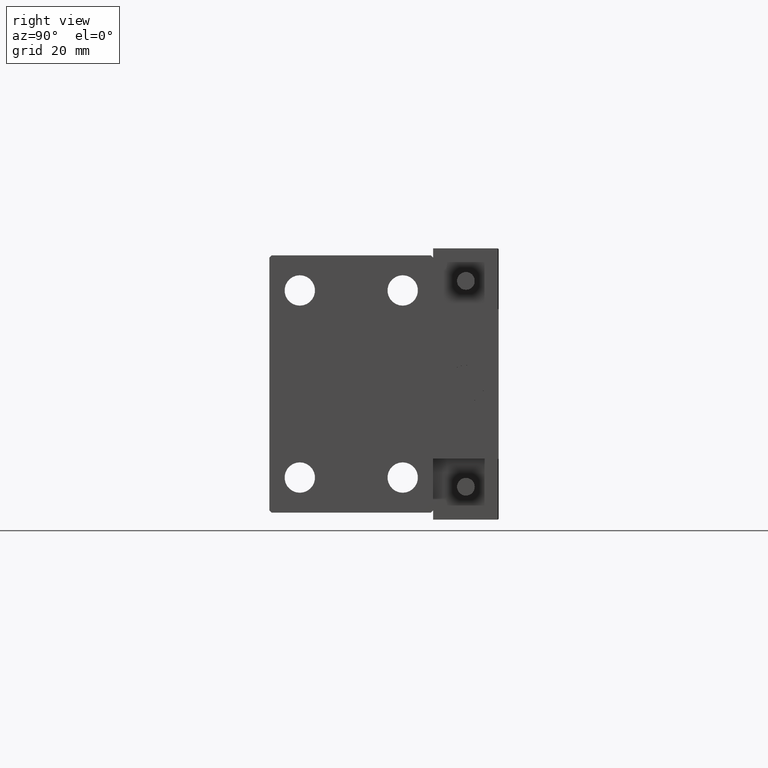
[diagram: clean part render]
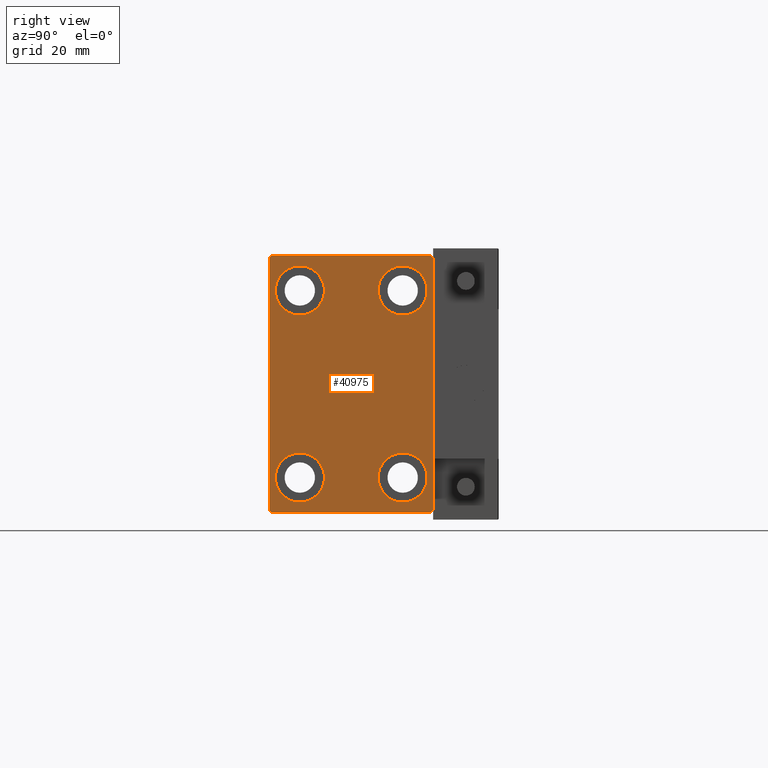
[diagram: same view with one face highlighted and labeled with its STEP entity id]
A machine part, right view. The second image highlights one B-rep face of the part: STEP entity #40975.
In plain terms, the highlighted planar face has unit normal (1, 0, 0).
Its self-contained STEP definition (entity closure, byte-faithful):
#10 = CARTESIAN_POINT ( 'NONE',  ( 66.00000000000000000, -11.00000000000000355, -25.25000000000000000 ) ) ;
#755 = VERTEX_POINT ( 'NONE', #15569 ) ;
#1099 = CARTESIAN_POINT ( 'NONE',  ( 66.00000000000000000, 22.24999999999999645, -22.24999999999999645 ) ) ;
#1610 = ORIENTED_EDGE ( 'NONE', *, *, #31214, .T. ) ;
#1825 = CIRCLE ( 'NONE', #21225, 5.250000000000000888 ) ;
#3007 = VERTEX_POINT ( 'NONE', #39530 ) ;
#3582 = ORIENTED_EDGE ( 'NONE', *, *, #20964, .T. ) ;
#3701 = EDGE_CURVE ( 'NONE', #34740, #32030, #7687, .T. ) ;
#3790 = VERTEX_POINT ( 'NONE', #43704 ) ;
#4422 = CARTESIAN_POINT ( 'NONE',  ( 66.00000000000000000, 11.00000000000000355, 20.00000000000000000 ) ) ;
#5000 = CARTESIAN_POINT ( 'NONE',  ( 66.00000000000000000, -22.24999999999976552, 22.25000000000038014 ) ) ;
#5010 = CARTESIAN_POINT ( 'NONE',  ( 66.00000000000000000, -17.50000000000000000, -27.00000000000000355 ) ) ;
#5298 = CARTESIAN_POINT ( 'NONE',  ( 66.00000000000000000, 11.00000000000000355, -20.00000000000000000 ) ) ;
#5304 = DIRECTION ( 'NONE',  ( -1.000000000000000000, -0.000000000000000000, -0.000000000000000000 ) ) ;
#6593 = DIRECTION ( 'NONE',  ( -1.000000000000000000, -0.000000000000000000, -0.000000000000000000 ) ) ;
#6675 = FACE_BOUND ( 'NONE', #25118, .T. ) ;
#6714 = EDGE_CURVE ( 'NONE', #3007, #18403, #23223, .T. ) ;
#6882 = CARTESIAN_POINT ( 'NONE',  ( 66.00000000000000000, -17.50000000000000000, 27.00000000000001066 ) ) ;
#7578 = VERTEX_POINT ( 'NONE', #24486 ) ;
#7687 = LINE ( 'NONE', #38649, #26371 ) ;
#7827 = DIRECTION ( 'NONE',  ( -0.000000000000000000, -0.7071067811865378028, 0.7071067811865573427 ) ) ;
#8240 = CARTESIAN_POINT ( 'NONE',  ( 66.00000000000000000, -22.25000000000000355, -22.25000000000000355 ) ) ;
#8351 = VECTOR ( 'NONE', #24147, 1000.000000000000000 ) ;
#8426 = DIRECTION ( 'NONE',  ( 0.000000000000000000, 0.000000000000000000, 1.000000000000000000 ) ) ;
#8727 = DIRECTION ( 'NONE',  ( -1.000000000000000000, -0.000000000000000000, -0.000000000000000000 ) ) ;
#8933 = CARTESIAN_POINT ( 'NONE',  ( 66.00000000000000000, -17.50000000000000000, 27.49999999999999645 ) ) ;
#9257 = DIRECTION ( 'NONE',  ( 0.000000000000000000, 0.000000000000000000, 1.000000000000000000 ) ) ;
#9683 = AXIS2_PLACEMENT_3D ( 'NONE', #40058, #5304, #17221 ) ;
#9848 = DIRECTION ( 'NONE',  ( -1.000000000000000000, -0.000000000000000000, -0.000000000000000000 ) ) ;
#10233 = FACE_BOUND ( 'NONE', #27107, .T. ) ;
#10439 = CIRCLE ( 'NONE', #37964, 5.250000000000000888 ) ;
#10490 = DIRECTION ( 'NONE',  ( 0.000000000000000000, 0.000000000000000000, -1.000000000000000000 ) ) ;
#10941 = VECTOR ( 'NONE', #36450, 1000.000000000000000 ) ;
#11153 = VERTEX_POINT ( 'NONE', #31262 ) ;
#11294 = LINE ( 'NONE', #8240, #27140 ) ;
#11456 = AXIS2_PLACEMENT_3D ( 'NONE', #43923, #39874, #8426 ) ;
#11514 = CARTESIAN_POINT ( 'NONE',  ( 66.00000000000000000, 17.50000000000000000, 27.00000000000000355 ) ) ;
#12108 = VERTEX_POINT ( 'NONE', #14533 ) ;
#13002 = CARTESIAN_POINT ( 'NONE',  ( 66.00000000000000000, 17.50000000000000711, -26.99999999999998934 ) ) ;
#13021 = DIRECTION ( 'NONE',  ( -0.000000000000000000, 0.7071067811865474617, 0.7071067811865474617 ) ) ;
#14028 = LINE ( 'NONE', #29483, #14357 ) ;
#14192 = EDGE_CURVE ( 'NONE', #22941, #19074, #28335, .T. ) ;
#14357 = VECTOR ( 'NONE', #18824, 1000.000000000000000 ) ;
#14533 = CARTESIAN_POINT ( 'NONE',  ( 66.00000000000000000, 11.00000000000000355, 14.75000000000000000 ) ) ;
#14605 = CIRCLE ( 'NONE', #42940, 5.250000000000000888 ) ;
#14708 = CARTESIAN_POINT ( 'NONE',  ( 66.00000000000000000, -11.00000000000000355, -20.00000000000000000 ) ) ;
#15569 = CARTESIAN_POINT ( 'NONE',  ( 66.00000000000000000, -17.00000000000000000, -27.50000000000000355 ) ) ;
#15596 = CIRCLE ( 'NONE', #23718, 5.250000000000000888 ) ;
#15694 = VECTOR ( 'NONE', #34934, 1000.000000000000000 ) ;
#15712 = VERTEX_POINT ( 'NONE', #5010 ) ;
#16348 = DIRECTION ( 'NONE',  ( 0.000000000000000000, 0.000000000000000000, 1.000000000000000000 ) ) ;
#16426 = VERTEX_POINT ( 'NONE', #6882 ) ;
#16921 = LINE ( 'NONE', #5000, #10941 ) ;
#17221 = DIRECTION ( 'NONE',  ( 0.000000000000000000, 0.000000000000000000, 1.000000000000000000 ) ) ;
#17270 = EDGE_CURVE ( 'NONE', #18403, #3007, #47593, .T. ) ;
#17976 = EDGE_CURVE ( 'NONE', #7578, #35077, #14028, .T. ) ;
#18403 = VERTEX_POINT ( 'NONE', #40043 ) ;
#18440 = CARTESIAN_POINT ( 'NONE',  ( 66.00000000000000000, -17.00000000000000000, 27.49999999999999645 ) ) ;
#18824 = DIRECTION ( 'NONE',  ( 0.000000000000000000, -1.000000000000000000, -1.982541115402065110E-16 ) ) ;
#18943 = LINE ( 'NONE', #41116, #15694 ) ;
#19056 = ORIENTED_EDGE ( 'NONE', *, *, #14192, .T. ) ;
#19074 = VERTEX_POINT ( 'NONE', #10 ) ;
#19149 = CARTESIAN_POINT ( 'NONE',  ( 66.00000000000000000, 11.00000000000000355, -14.75000000000000000 ) ) ;
#19678 = VERTEX_POINT ( 'NONE', #19149 ) ;
#20296 = DIRECTION ( 'NONE',  ( -1.000000000000000000, -0.000000000000000000, -0.000000000000000000 ) ) ;
#20331 = ORIENTED_EDGE ( 'NONE', *, *, #40241, .T. ) ;
#20613 = LINE ( 'NONE', #1099, #21865 ) ;
#20762 = DIRECTION ( 'NONE',  ( 0.000000000000000000, 0.000000000000000000, 1.000000000000000000 ) ) ;
#20964 = EDGE_CURVE ( 'NONE', #19074, #22941, #10439, .T. ) ;
#21035 = CARTESIAN_POINT ( 'NONE',  ( 66.00000000000000000, 16.99999999999999289, -27.50000000000000355 ) ) ;
#21225 = AXIS2_PLACEMENT_3D ( 'NONE', #4422, #8727, #16348 ) ;
#21368 = EDGE_LOOP ( 'NONE', ( #3582, #19056 ) ) ;
#21865 = VECTOR ( 'NONE', #13021, 1000.000000000000114 ) ;
#21880 = ORIENTED_EDGE ( 'NONE', *, *, #23959, .T. ) ;
#22636 = FACE_BOUND ( 'NONE', #21368, .T. ) ;
#22811 = ORIENTED_EDGE ( 'NONE', *, *, #3701, .T. ) ;
#22941 = VERTEX_POINT ( 'NONE', #41086 ) ;
#23223 = CIRCLE ( 'NONE', #46707, 5.250000000000000888 ) ;
#23718 = AXIS2_PLACEMENT_3D ( 'NONE', #5298, #9848, #20762 ) ;
#23959 = EDGE_CURVE ( 'NONE', #47238, #34740, #20613, .T. ) ;
#24147 = DIRECTION ( 'NONE',  ( 0.000000000000000000, 0.000000000000000000, -1.000000000000000000 ) ) ;
#24367 = ORIENTED_EDGE ( 'NONE', *, *, #6714, .T. ) ;
#24486 = CARTESIAN_POINT ( 'NONE',  ( 66.00000000000000000, 17.00000000000001421, 27.50000000000000355 ) ) ;
#24975 = CARTESIAN_POINT ( 'NONE',  ( 66.00000000000000000, -11.00000000000000355, 20.00000000000000000 ) ) ;
#25118 = EDGE_LOOP ( 'NONE', ( #36870, #1610 ) ) ;
#26371 = VECTOR ( 'NONE', #41960, 1000.000000000000000 ) ;
#26419 = ORIENTED_EDGE ( 'NONE', *, *, #28087, .T. ) ;
#26998 = ORIENTED_EDGE ( 'NONE', *, *, #17270, .T. ) ;
#27107 = EDGE_LOOP ( 'NONE', ( #24367, #26998 ) ) ;
#27140 = VECTOR ( 'NONE', #49853, 1000.000000000000114 ) ;
#28087 = EDGE_CURVE ( 'NONE', #19678, #11153, #14605, .T. ) ;
#28335 = CIRCLE ( 'NONE', #9683, 5.250000000000000888 ) ;
#28415 = CARTESIAN_POINT ( 'NONE',  ( 66.00000000000000000, -11.00000000000000355, 20.00000000000000000 ) ) ;
#29483 = CARTESIAN_POINT ( 'NONE',  ( 66.00000000000000000, 17.50000000000000000, 27.50000000000000355 ) ) ;
#30995 = ORIENTED_EDGE ( 'NONE', *, *, #49110, .T. ) ;
#31158 = LINE ( 'NONE', #34226, #36775 ) ;
#31214 = EDGE_CURVE ( 'NONE', #3790, #12108, #41461, .T. ) ;
#31262 = CARTESIAN_POINT ( 'NONE',  ( 66.00000000000000000, 11.00000000000000355, -25.25000000000000000 ) ) ;
#31965 = CARTESIAN_POINT ( 'NONE',  ( 66.00000000000000000, 11.00000000000000355, -20.00000000000000000 ) ) ;
#32030 = VERTEX_POINT ( 'NONE', #11514 ) ;
#32476 = DIRECTION ( 'NONE',  ( 0.000000000000000000, 0.000000000000000000, 1.000000000000000000 ) ) ;
#32781 = ORIENTED_EDGE ( 'NONE', *, *, #36980, .T. ) ;
#33313 = PLANE ( 'NONE',  #33550 ) ;
#33428 = EDGE_CURVE ( 'NONE', #12108, #3790, #1825, .T. ) ;
#33550 = AXIS2_PLACEMENT_3D ( 'NONE', #45236, #41680, #10490 ) ;
#34013 = EDGE_CURVE ( 'NONE', #11153, #19678, #15596, .T. ) ;
#34066 = FACE_BOUND ( 'NONE', #35223, .T. ) ;
#34226 = CARTESIAN_POINT ( 'NONE',  ( 66.00000000000000000, 22.25000000000024869, 22.24999999999963407 ) ) ;
#34697 = EDGE_CURVE ( 'NONE', #16426, #15712, #47248, .T. ) ;
#34740 = VERTEX_POINT ( 'NONE', #13002 ) ;
#34934 = DIRECTION ( 'NONE',  ( 0.000000000000000000, 1.000000000000000000, 0.000000000000000000 ) ) ;
#35077 = VERTEX_POINT ( 'NONE', #18440 ) ;
#35223 = EDGE_LOOP ( 'NONE', ( #35422, #26419 ) ) ;
#35422 = ORIENTED_EDGE ( 'NONE', *, *, #34013, .T. ) ;
#36450 = DIRECTION ( 'NONE',  ( 0.000000000000000000, -0.7071067811865573427, -0.7071067811865378028 ) ) ;
#36775 = VECTOR ( 'NONE', #7827, 1000.000000000000000 ) ;
#36870 = ORIENTED_EDGE ( 'NONE', *, *, #33428, .T. ) ;
#36980 = EDGE_CURVE ( 'NONE', #32030, #7578, #31158, .T. ) ;
#37846 = AXIS2_PLACEMENT_3D ( 'NONE', #28415, #43897, #32476 ) ;
#37964 = AXIS2_PLACEMENT_3D ( 'NONE', #14708, #6593, #38277 ) ;
#38277 = DIRECTION ( 'NONE',  ( 0.000000000000000000, 0.000000000000000000, 1.000000000000000000 ) ) ;
#38285 = ORIENTED_EDGE ( 'NONE', *, *, #17976, .T. ) ;
#38649 = CARTESIAN_POINT ( 'NONE',  ( 66.00000000000000000, 17.50000000000000711, -27.50000000000000355 ) ) ;
#38834 = DIRECTION ( 'NONE',  ( 0.000000000000000000, 0.000000000000000000, 1.000000000000000000 ) ) ;
#39530 = CARTESIAN_POINT ( 'NONE',  ( 66.00000000000000000, -11.00000000000000355, 14.75000000000000000 ) ) ;
#39874 = DIRECTION ( 'NONE',  ( -1.000000000000000000, -0.000000000000000000, -0.000000000000000000 ) ) ;
#40043 = CARTESIAN_POINT ( 'NONE',  ( 66.00000000000000000, -11.00000000000000355, 25.25000000000000000 ) ) ;
#40058 = CARTESIAN_POINT ( 'NONE',  ( 66.00000000000000000, -11.00000000000000355, -20.00000000000000000 ) ) ;
#40241 = EDGE_CURVE ( 'NONE', #755, #47238, #18943, .T. ) ;
#40975 = ADVANCED_FACE ( 'NONE', ( #34066, #10233, #6675, #22636, #49058 ), #33313, .T. ) ;
#41086 = CARTESIAN_POINT ( 'NONE',  ( 66.00000000000000000, -11.00000000000000355, -14.75000000000000000 ) ) ;
#41116 = CARTESIAN_POINT ( 'NONE',  ( 66.00000000000000000, -17.50000000000000000, -27.50000000000000355 ) ) ;
#41461 = CIRCLE ( 'NONE', #11456, 5.250000000000000888 ) ;
#41680 = DIRECTION ( 'NONE',  ( 1.000000000000000000, 0.000000000000000000, 0.000000000000000000 ) ) ;
#41960 = DIRECTION ( 'NONE',  ( 0.000000000000000000, -1.261617073437677752E-16, 1.000000000000000000 ) ) ;
#42940 = AXIS2_PLACEMENT_3D ( 'NONE', #31965, #20296, #38834 ) ;
#43353 = EDGE_LOOP ( 'NONE', ( #38285, #49485, #49289, #30995, #20331, #21880, #22811, #32781 ) ) ;
#43704 = CARTESIAN_POINT ( 'NONE',  ( 66.00000000000000000, 11.00000000000000355, 25.25000000000000000 ) ) ;
#43897 = DIRECTION ( 'NONE',  ( -1.000000000000000000, -0.000000000000000000, -0.000000000000000000 ) ) ;
#43923 = CARTESIAN_POINT ( 'NONE',  ( 66.00000000000000000, 11.00000000000000355, 20.00000000000000000 ) ) ;
#45236 = CARTESIAN_POINT ( 'NONE',  ( 66.00000000000000000, 0.000000000000000000, 0.000000000000000000 ) ) ;
#46707 = AXIS2_PLACEMENT_3D ( 'NONE', #24975, #49102, #9257 ) ;
#47238 = VERTEX_POINT ( 'NONE', #21035 ) ;
#47248 = LINE ( 'NONE', #8933, #8351 ) ;
#47593 = CIRCLE ( 'NONE', #37846, 5.250000000000000888 ) ;
#48840 = EDGE_CURVE ( 'NONE', #35077, #16426, #16921, .T. ) ;
#49058 = FACE_OUTER_BOUND ( 'NONE', #43353, .T. ) ;
#49102 = DIRECTION ( 'NONE',  ( -1.000000000000000000, -0.000000000000000000, -0.000000000000000000 ) ) ;
#49110 = EDGE_CURVE ( 'NONE', #15712, #755, #11294, .T. ) ;
#49289 = ORIENTED_EDGE ( 'NONE', *, *, #34697, .T. ) ;
#49485 = ORIENTED_EDGE ( 'NONE', *, *, #48840, .T. ) ;
#49853 = DIRECTION ( 'NONE',  ( -0.000000000000000000, 0.7071067811865474617, -0.7071067811865474617 ) ) ;